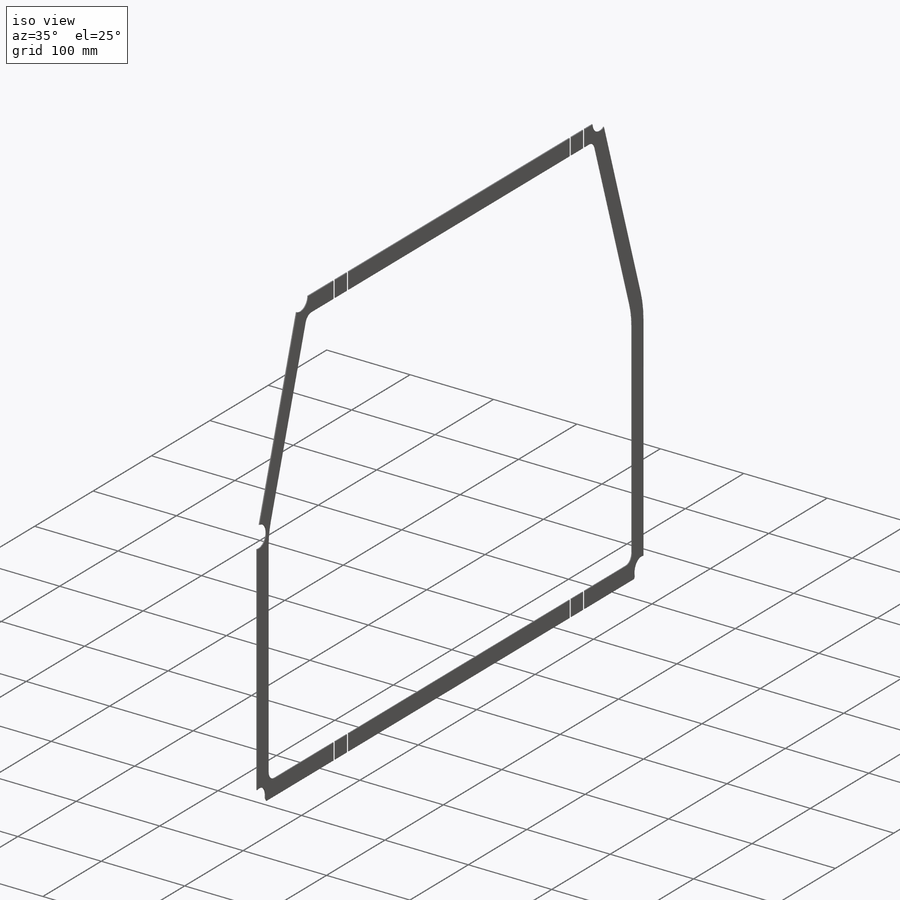
[diagram: iso view]
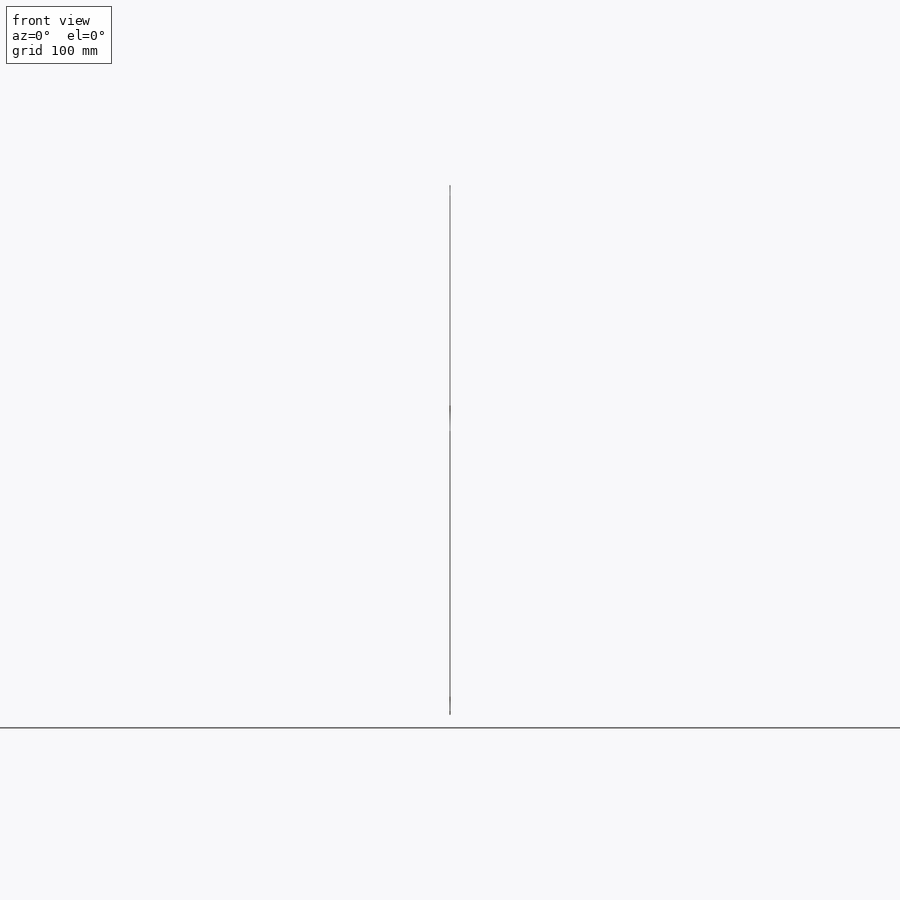
[diagram: front view]
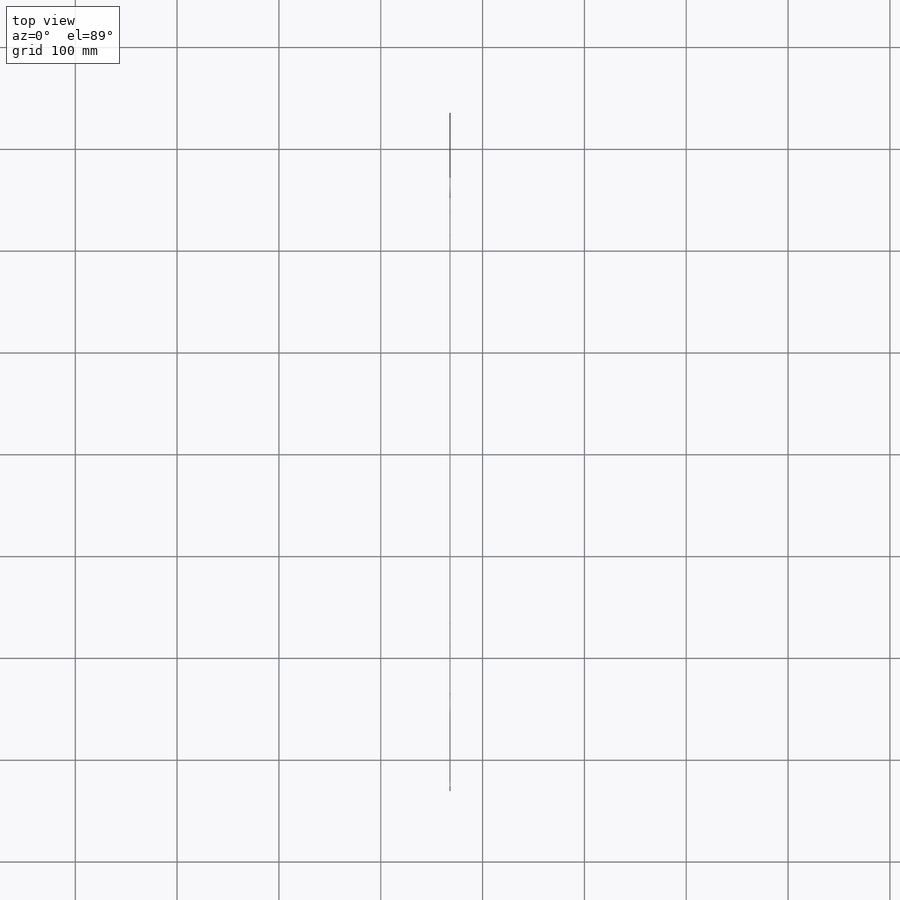
[diagram: top view]
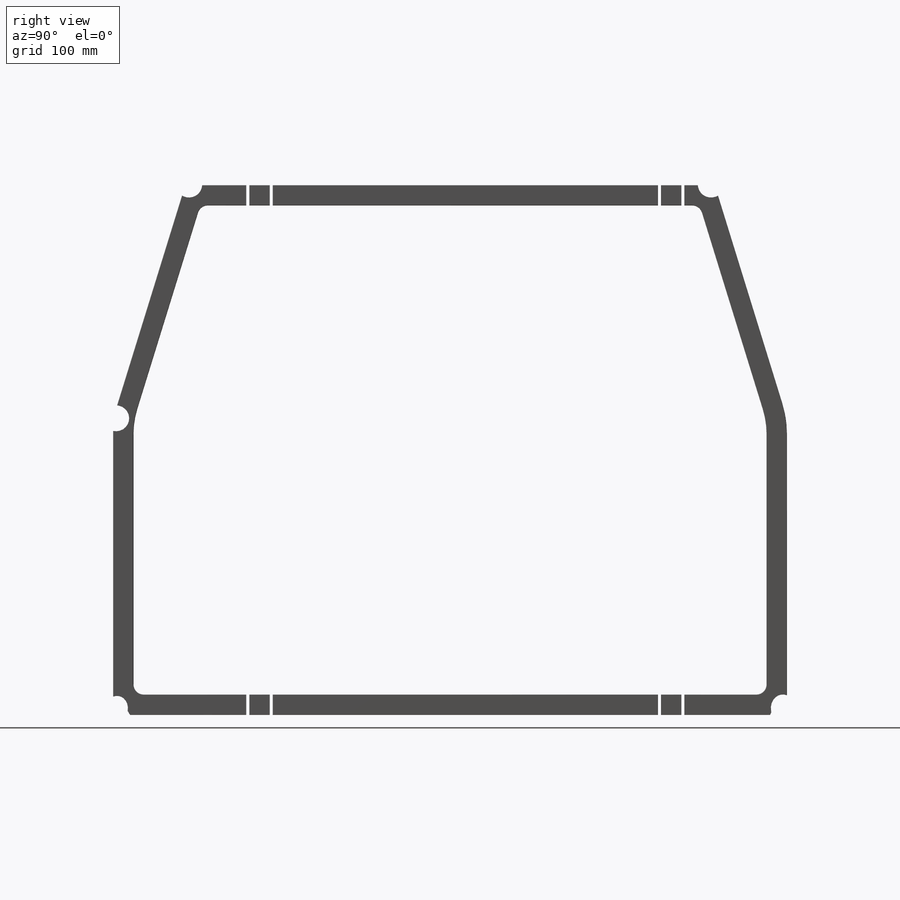
[diagram: right view]
SOLIDWORKS PART (.sldprt)
format: sldprt  version: not decoded by parser v0  size: 737,280 bytes
history: native  units: mm
features: sketch x3, fillet x3, cut_extrude x2, material x1, plane x1, extrude x1 (+11 scaffold rows collapsed)
feature tree (22):
  scaffold x11  (default folders/planes/origin — collapsed)
  material  "Plain Carbon Steel"
  plane  "Plane1"  Offset=1567.5mm
  sketch  "Sketch1"  dims[c1.D3=10.0mm c1.D2=10.0mm c2.D3=3.0mm c2.D1=525.0mm c2.D2=20.0mm c3.D1=20.0mm]
  extrude  "Boss-Extrude1"  Depth=0mm NLT_HIDE=0mm NLT_HIDE_TO_CAMERA=0mm NLT_HIDE_TO_REFLECTIONS_AND_REFRACTIONS=0mm NLT_HIDE_TO_GI=0mm NLT_EXCLUDE_FROM_ZCLIP_PLANES=0mm NLT_IS_MULTI_MATERIAL_BODY=0mm NLT_MAT_ID=0mm
  fillet  "Fillet1"  [1 undecoded]
  fillet  "NLT_3"  Radius=0mm NLT_MAT_ID=0mm NLT_HIDE=0mm NLT_HIDE_TO_CAMERA=0mm NLT_HIDE_TO_REFLECTIONS_AND_REFRACTIONS=0mm NLT_HIDE_TO_GI=0mm NLT_EXCLUDE_FROM_ZCLIP_PLANES=0mm NLT_IS_MULTI_MATERIAL_BODY=0mm
  fillet  "NLT_1"  Radius=0mm NLT_MAT_ID=0mm NLT_HIDE=0mm NLT_HIDE_TO_CAMERA=0mm NLT_HIDE_TO_REFLECTIONS_AND_REFRACTIONS=0mm NLT_HIDE_TO_GI=0mm NLT_EXCLUDE_FROM_ZCLIP_PLANES=0mm NLT_IS_MULTI_MATERIAL_BODY=0mm
  sketch  "Sketch2"
  cut_extrude  "Cut-Extrude1"  [1 undecoded]
  sketch  "Sketch3"
  cut_extrude  "Cut-Extrude5"  Depth=1mm
decode coverage: 5 of 9 modeling features carry decoded parameters
note: 2 parameter values undecoded
note: suppression state not decoded; provenance and decode notes live in map.json
